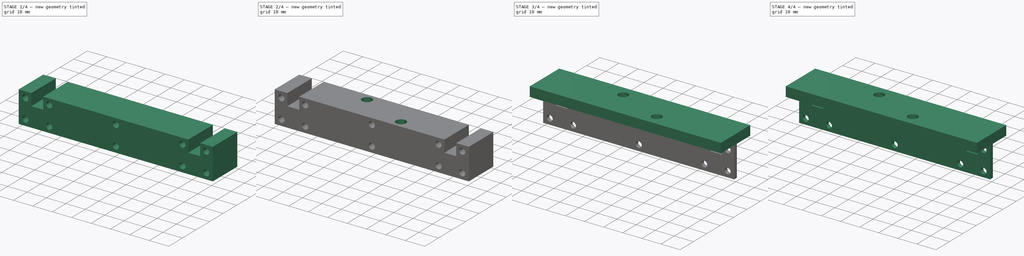
[diagram: build sequence overview — one tinted view per stage of 4, left to right]
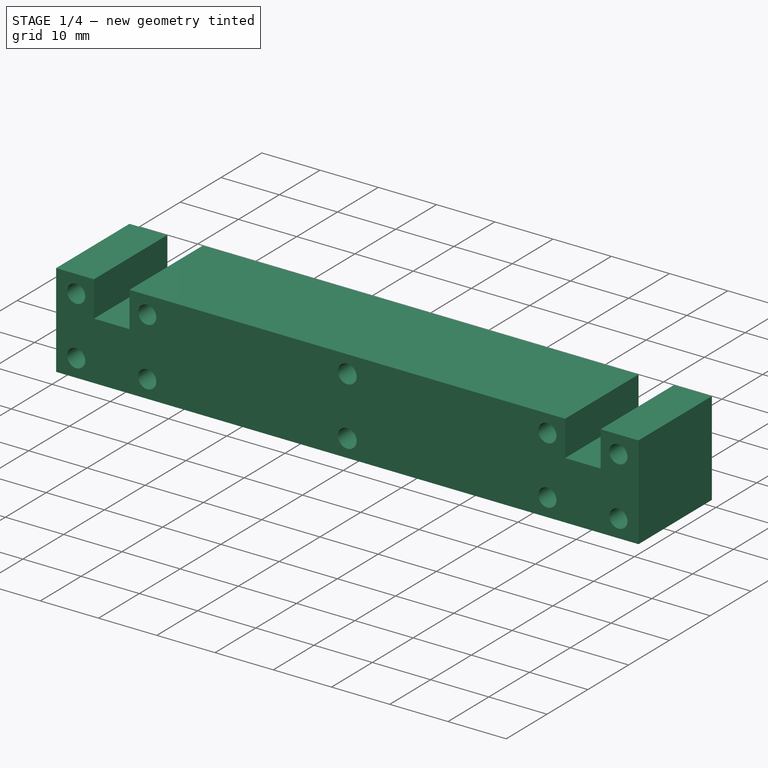
[diagram: stage 1 of 4 — iso view after this stage's code; geometry added in this stage tinted green]
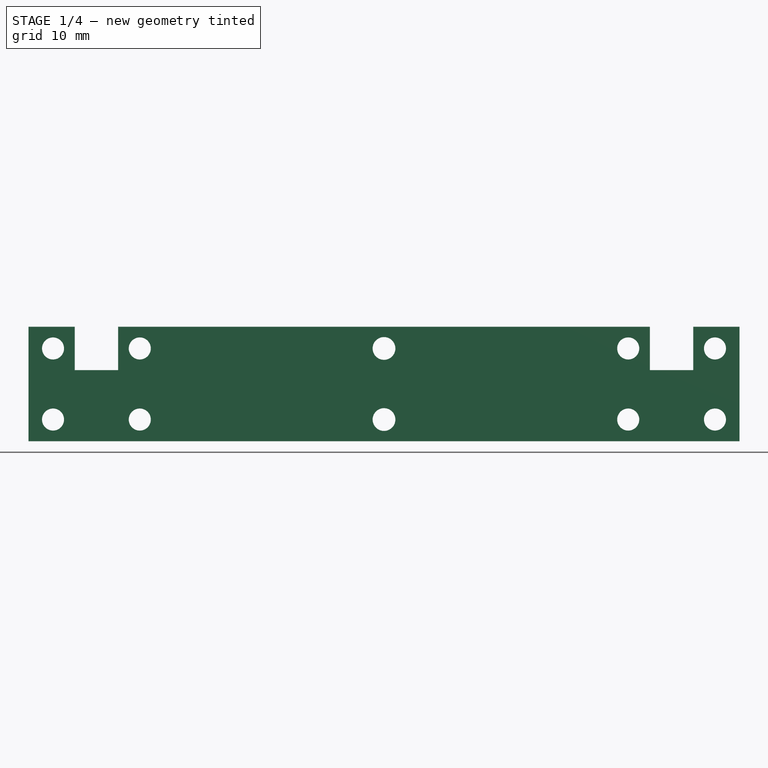
[diagram: stage 1 of 4 — front view after this stage's code; geometry added in this stage tinted green]
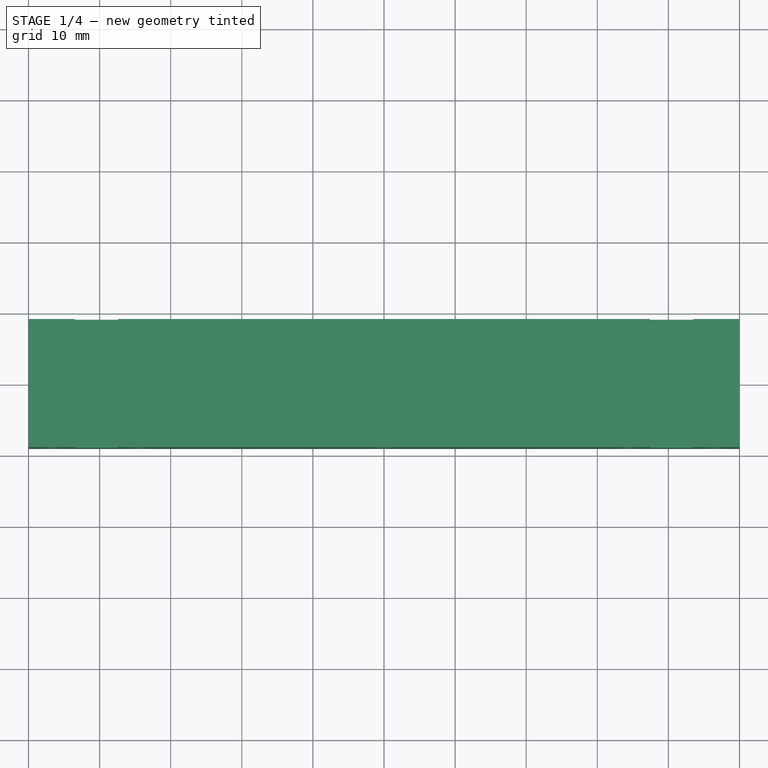
[diagram: stage 1 of 4 — top view after this stage's code; geometry added in this stage tinted green]
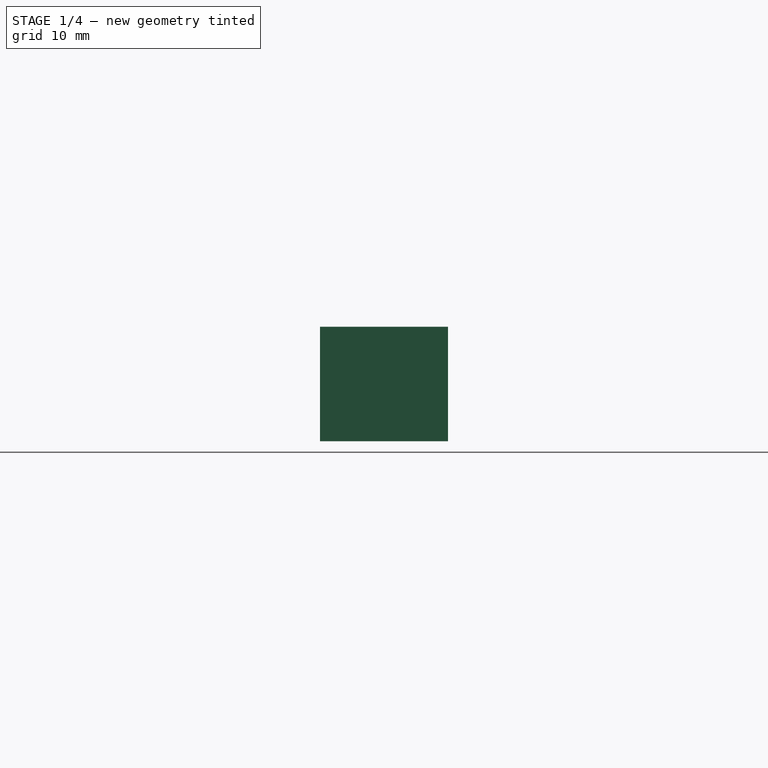
[diagram: stage 1 of 4 — right view after this stage's code; geometry added in this stage tinted green]
FCSTD DOCUMENT  (FreeCAD 0.19R24276 (Git))
Label: MLGMount
License: All rights reserved
LicenseURL: http://en.wikipedia.org/wiki/All_rights_reserved
objects: Sketcher::SketchObject×7, Part::Extrusion×7, App::Part×4, Part::Cut×2, Part::Part2DObjectPython×1
note: 17 computed .brp shape members not serialized (recipe doc carries the construction recipe); baked Part::Feature solids carry a one-line shape summary decoded from their .brp

FEATURE [Sketcher::SketchObject] Sketch
  FullyConstrained = true
  Placement = pos=(0,0,0) rot=(1,0,0;1.5708rad)
  sketch-geometry (22):
    g0: LineSegment StartX=-37.4 StartY=8.05 StartZ=0 EndX=37.4 EndY=8.05 EndZ=0
    g1: LineSegment StartX=43.5 StartY=8.05 StartZ=0 EndX=50 EndY=8.05 EndZ=0
    g2: LineSegment StartX=50 StartY=8.05 StartZ=0 EndX=50 EndY=-8.05 EndZ=0
    g3: LineSegment StartX=37.4 StartY=1.95 StartZ=0 EndX=43.5 EndY=1.95 EndZ=0
    g4: LineSegment StartX=-50 StartY=8.05 StartZ=0 EndX=-43.5 EndY=8.05 EndZ=0
    g5: LineSegment StartX=-50 StartY=-8.05 StartZ=0 EndX=-50 EndY=8.05 EndZ=0
    g6: LineSegment StartX=-37.4 StartY=1.95 StartZ=0 EndX=-43.5 EndY=1.95 EndZ=0
    g7: LineSegment StartX=-43.5 StartY=8.05 StartZ=0 EndX=-43.5 EndY=1.95 EndZ=0
    g8: LineSegment StartX=-37.4 StartY=1.95 StartZ=0 EndX=-37.4 EndY=8.05 EndZ=0
    g9: LineSegment StartX=37.4 StartY=8.05 StartZ=0 EndX=37.4 EndY=1.95 EndZ=0
    g10: LineSegment StartX=43.5 StartY=1.95 StartZ=0 EndX=43.5 EndY=8.05 EndZ=0
    g11: LineSegment StartX=-50 StartY=-8.05 StartZ=0 EndX=50 EndY=-8.05 EndZ=0
    g12: Circle CenterX=-46.55 CenterY=5 CenterZ=0 NormalX=0 NormalY=0 NormalZ=1 AngleXU=0 Radius=1.55
    g13: Circle CenterX=-46.55 CenterY=-5 CenterZ=0 NormalX=0 NormalY=0 NormalZ=1 AngleXU=0 Radius=1.55
    g14: Circle CenterX=46.55 CenterY=5 CenterZ=0 NormalX=0 NormalY=0 NormalZ=1 AngleXU=0 Radius=1.55
    g15: Circle CenterX=46.55 CenterY=-5 CenterZ=0 NormalX=0 NormalY=0 NormalZ=1 AngleXU=0 Radius=1.55
    g16: Circle CenterX=0 CenterY=5 CenterZ=0 NormalX=0 NormalY=0 NormalZ=1 AngleXU=0 Radius=1.6
    g17: Circle CenterX=0 CenterY=-5 CenterZ=0 NormalX=0 NormalY=0 NormalZ=1 AngleXU=0 Radius=1.6
    g18: Circle CenterX=-34.35 CenterY=5 CenterZ=0 NormalX=0 NormalY=0 NormalZ=1 AngleXU=0 Radius=1.55
    g19: Circle CenterX=-34.35 CenterY=-5 CenterZ=0 NormalX=0 NormalY=0 NormalZ=1 AngleXU=0 Radius=1.55
    g20: Circle CenterX=34.35 CenterY=5 CenterZ=0 NormalX=0 NormalY=0 NormalZ=1 AngleXU=0 Radius=1.55
    g21: Circle CenterX=34.35 CenterY=-5 CenterZ=0 NormalX=0 NormalY=0 NormalZ=1 AngleXU=0 Radius=1.55
  constraints (66):
    c: Horizontal(g0)
    c: Coincident(g1,g2)
    c: Horizontal(g1)
    c: Vertical(g2)
    c: Horizontal(g3)
    c: Coincident(g5,g4)
    c: Horizontal(g4)
    c: Vertical(g5)
    c: Horizontal(g6)
    c: Coincident(g7,g4)
    c: Coincident(g7,g6)
    c: Vertical(g7)
    c: Coincident(g8,g6)
    c: Coincident(g8,g0)
    c: Vertical(g8)
    c: Coincident(g9,g0)
    c: Coincident(g9,g3)
    c: Vertical(g9)
    c: Coincident(g10,g3)
    c: Coincident(g10,g1)
    c: Vertical(g10)
    c: Coincident(g11,g5)
    c: Coincident(g11,g2)
    c: Horizontal(g11)
    c: DistanceX(g4,g1) = 87
    c: DistanceX(g6,g6) = 6.1
    c: DistanceX(g0,g1) = 6.1
    c: DistanceY(g7,g7) = 6.1
    c: DistanceY(g8,g8) = 6.1
    c: DistanceY(g9,g9) = 6.1
    c: DistanceY(g10,g10) = 6.1
    c: DistanceY(g5,g5) = 16.1
    c: DistanceX(g11,g11) = 100
    c: DistanceX(g5,g-1) = 50
    c: DistanceY(g-1,g1) = 8.05
    c: DistanceX(g4,g-1) = 43.5
    c: Radius(g12) = 1.55
    c: DistanceY(g12,g4) = 3.05
    c: DistanceX(g12,g4) = 3.05
    c: Radius(g13) = 1.55
    c: DistanceX(g13,g6) = 3.05
    c: DistanceY(g5,g13) = 3.05
    c: Radius(g14) = 1.55
    c: Radius(g15) = 1.55
    c: DistanceY(g14,g1) = 3.05
    c: DistanceX(g1,g14) = 3.05
    c: DistanceY(g2,g15) = 3.05
    c: DistanceX(g3,g15) = 3.05
    c: DistanceY(g16,g0) = 3.05
    c: DistanceY(g5,g17) = 3.05
    c: Radius(g16) = 1.6
    c: Radius(g17) = 1.6
    c: DistanceX(g17,g-1) = 0
    c: DistanceX(g16,g-1) = 0
    c: Radius(g18) = 1.55
    c: Radius(g19) = 1.55
    c: Radius(g20) = 1.55
    c: Radius(g21) = 1.55
    c: DistanceX(g0,g18) = 3.05
    c: DistanceX(g6,g19) = 3.05
    c: DistanceY(g18,g0) = 3.05
    c: DistanceY(g5,g19) = 3.05
    c: DistanceY(g20,g0) = 3.05
    c: DistanceY(g2,g21) = 3.05
    c: DistanceX(g20,g0) = 3.05
    c: DistanceX(g21,g3) = 3.05
FEATURE [Part::Extrusion] Extrude
  Base = -> Sketch
  Dir = (0,-1,3e-16)
  DirMode = 2
  FaceMakerClass = Part::FaceMakerBullseye
  LengthFwd = 9
  LengthRev = 9
  Solid = true
  Symmetric = false
FEATURE [App::Part] Part002  label="GFPlate1"
  Group = -> [Sketch004,Extrude004]
  Origin = -> Origin002
  Placement = pos=(0,10.01,0) rot=(0,0,1;0rad)
FEATURE [Sketcher::SketchObject] Sketch005
  FullyConstrained = true
  Placement = pos=(0,0,0) rot=(1,0,0;1.5708rad)
  sketch-geometry (22):
    g0: LineSegment StartX=-37.4 StartY=8.05 StartZ=0 EndX=37.4 EndY=8.05 EndZ=0
    g1: LineSegment StartX=43.5 StartY=8.05 StartZ=0 EndX=50 EndY=8.05 EndZ=0
    g2: LineSegment StartX=50 StartY=8.05 StartZ=0 EndX=50 EndY=-8.05 EndZ=0
    g3: LineSegment StartX=37.4 StartY=1.95 StartZ=0 EndX=43.5 EndY=1.95 EndZ=0
    g4: LineSegment StartX=-50 StartY=8.05 StartZ=0 EndX=-43.5 EndY=8.05 EndZ=0
    g5: LineSegment StartX=-50 StartY=-8.05 StartZ=0 EndX=-50 EndY=8.05 EndZ=0
    g6: LineSegment StartX=-37.4 StartY=1.95 StartZ=0 EndX=-43.5 EndY=1.95 EndZ=0
    g7: LineSegment StartX=-43.5 StartY=8.05 StartZ=0 EndX=-43.5 EndY=1.95 EndZ=0
    g8: LineSegment StartX=-37.4 StartY=1.95 StartZ=0 EndX=-37.4 EndY=8.05 EndZ=0
    g9: LineSegment StartX=37.4 StartY=8.05 StartZ=0 EndX=37.4 EndY=1.95 EndZ=0
    g10: LineSegment StartX=43.5 StartY=1.95 StartZ=0 EndX=43.5 EndY=8.05 EndZ=0
    g11: LineSegment StartX=-50 StartY=-8.05 StartZ=0 EndX=50 EndY=-8.05 EndZ=0
    g12: Circle CenterX=-46.55 CenterY=5 CenterZ=0 NormalX=0 NormalY=0 NormalZ=1 AngleXU=0 Radius=1.55
    g13: Circle CenterX=-46.55 CenterY=-5 CenterZ=0 NormalX=0 NormalY=0 NormalZ=1 AngleXU=0 Radius=1.55
    g14: Circle CenterX=46.55 CenterY=5 CenterZ=0 NormalX=0 NormalY=0 NormalZ=1 AngleXU=0 Radius=1.55
    g15: Circle CenterX=46.55 CenterY=-5 CenterZ=0 NormalX=0 NormalY=0 NormalZ=1 AngleXU=0 Radius=1.55
    g16: Circle CenterX=0 CenterY=5 CenterZ=0 NormalX=0 NormalY=0 NormalZ=1 AngleXU=0 Radius=1.6
    g17: Circle CenterX=0 CenterY=-5 CenterZ=0 NormalX=0 NormalY=0 NormalZ=1 AngleXU=0 Radius=1.6
    g18: Circle CenterX=-34.35 CenterY=5 CenterZ=0 NormalX=0 NormalY=0 NormalZ=1 AngleXU=0 Radius=1.55
    g19: Circle CenterX=-34.35 CenterY=-5 CenterZ=0 NormalX=0 NormalY=0 NormalZ=1 AngleXU=0 Radius=1.55
    g20: Circle CenterX=34.35 CenterY=5 CenterZ=0 NormalX=0 NormalY=0 NormalZ=1 AngleXU=0 Radius=1.55
    g21: Circle CenterX=34.35 CenterY=-5 CenterZ=0 NormalX=0 NormalY=0 NormalZ=1 AngleXU=0 Radius=1.55
  constraints (66):
    c: Horizontal(g0)
    c: Coincident(g1,g2)
    c: Horizontal(g1)
    c: Vertical(g2)
    c: Horizontal(g3)
    c: Coincident(g5,g4)
    c: Horizontal(g4)
    c: Vertical(g5)
    c: Horizontal(g6)
    c: Coincident(g7,g4)
    c: Coincident(g7,g6)
    c: Vertical(g7)
    c: Coincident(g8,g6)
    c: Coincident(g8,g0)
    c: Vertical(g8)
    c: Coincident(g9,g0)
    c: Coincident(g9,g3)
    c: Vertical(g9)
    c: Coincident(g10,g3)
    c: Coincident(g10,g1)
    c: Vertical(g10)
    c: Coincident(g11,g5)
    c: Coincident(g11,g2)
    c: Horizontal(g11)
    c: DistanceX(g4,g1) = 87
    c: DistanceX(g6,g6) = 6.1
    c: DistanceX(g0,g1) = 6.1
    c: DistanceY(g7,g7) = 6.1
    c: DistanceY(g8,g8) = 6.1
    c: DistanceY(g9,g9) = 6.1
    c: DistanceY(g10,g10) = 6.1
    c: DistanceY(g5,g5) = 16.1
    c: DistanceX(g11,g11) = 100
    c: DistanceX(g5,g-1) = 50
    c: DistanceY(g-1,g1) = 8.05
    c: DistanceX(g4,g-1) = 43.5
    c: Radius(g12) = 1.55
    c: DistanceY(g12,g4) = 3.05
    c: DistanceX(g12,g4) = 3.05
    c: Radius(g13) = 1.55
    c: DistanceX(g13,g6) = 3.05
    c: DistanceY(g5,g13) = 3.05
    c: Radius(g14) = 1.55
    c: Radius(g15) = 1.55
    c: DistanceY(g14,g1) = 3.05
    c: DistanceX(g1,g14) = 3.05
    c: DistanceY(g2,g15) = 3.05
    c: DistanceX(g3,g15) = 3.05
    c: DistanceY(g16,g0) = 3.05
    c: DistanceY(g5,g17) = 3.05
    c: Radius(g16) = 1.6
    c: Radius(g17) = 1.6
    c: DistanceX(g17,g-1) = 0
    c: DistanceX(g16,g-1) = 0
    c: Radius(g18) = 1.55
    c: Radius(g19) = 1.55
    c: Radius(g20) = 1.55
    c: Radius(g21) = 1.55
    c: DistanceX(g0,g18) = 3.05
    c: DistanceX(g6,g19) = 3.05
    c: DistanceY(g18,g0) = 3.05
    c: DistanceY(g5,g19) = 3.05
    c: DistanceY(g20,g0) = 3.05
    c: DistanceY(g2,g21) = 3.05
    c: DistanceX(g20,g0) = 3.05
    c: DistanceX(g21,g3) = 3.05
FEATURE [Part::Extrusion] Extrude005
  Base = -> Sketch005
  Dir = (0,-1,2e-16)
  DirMode = 2
  FaceMakerClass = Part::FaceMakerBullseye
  LengthFwd = 1
  LengthRev = 1
  Solid = true
  Symmetric = false
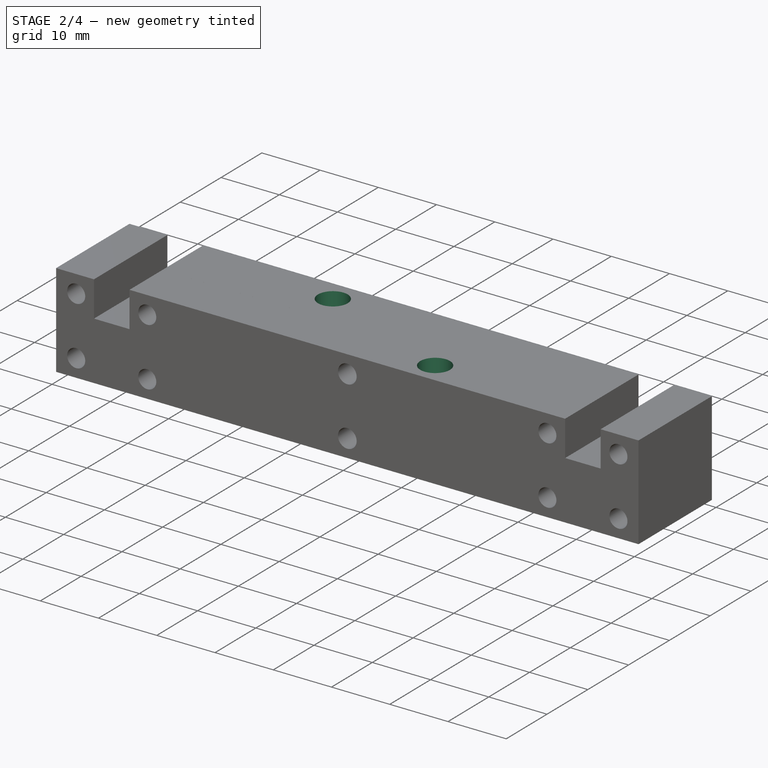
[diagram: stage 2 of 4 — iso view after this stage's code; geometry added in this stage tinted green]
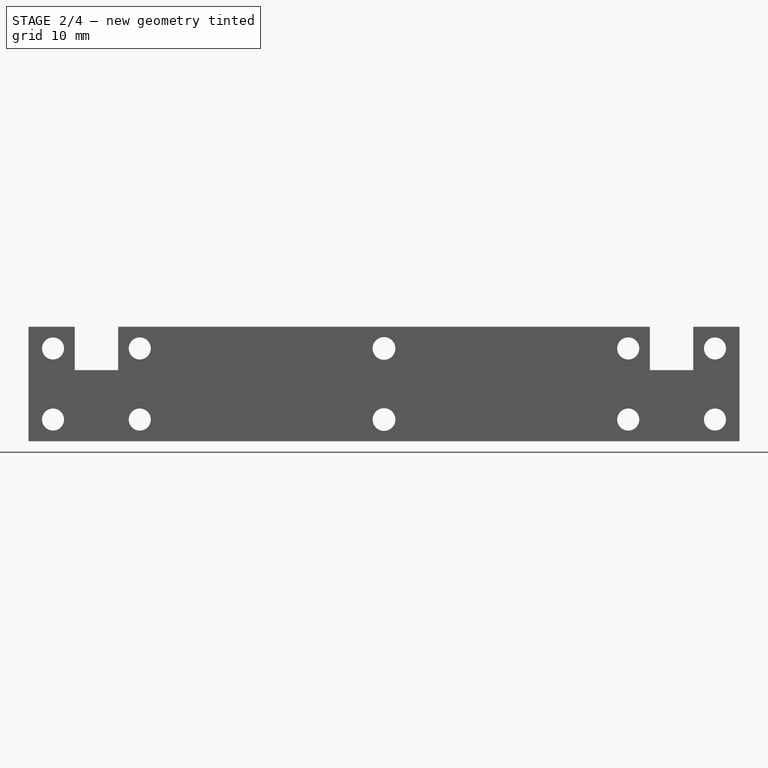
[diagram: stage 2 of 4 — front view after this stage's code; geometry added in this stage tinted green]
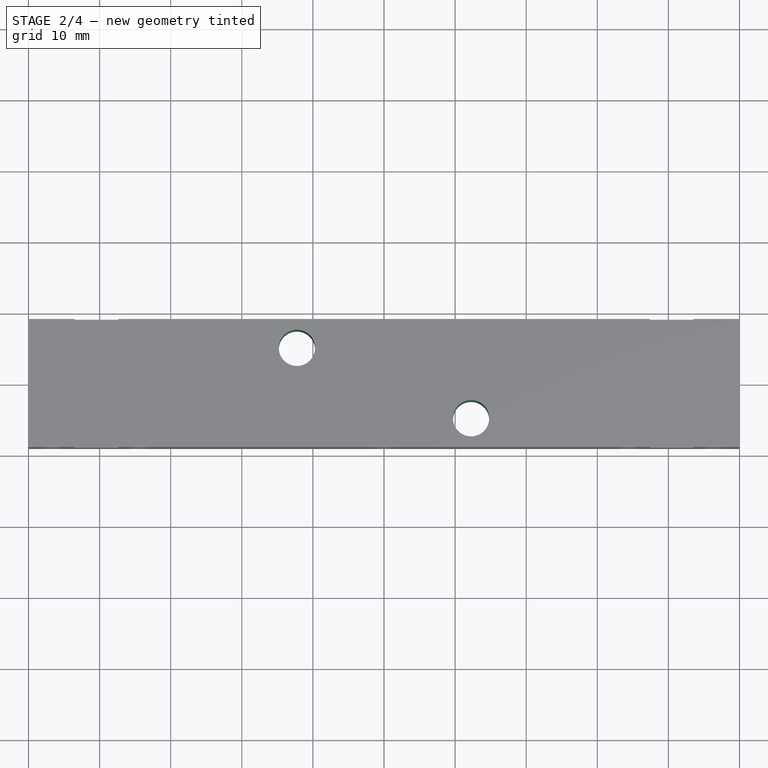
[diagram: stage 2 of 4 — top view after this stage's code; geometry added in this stage tinted green]
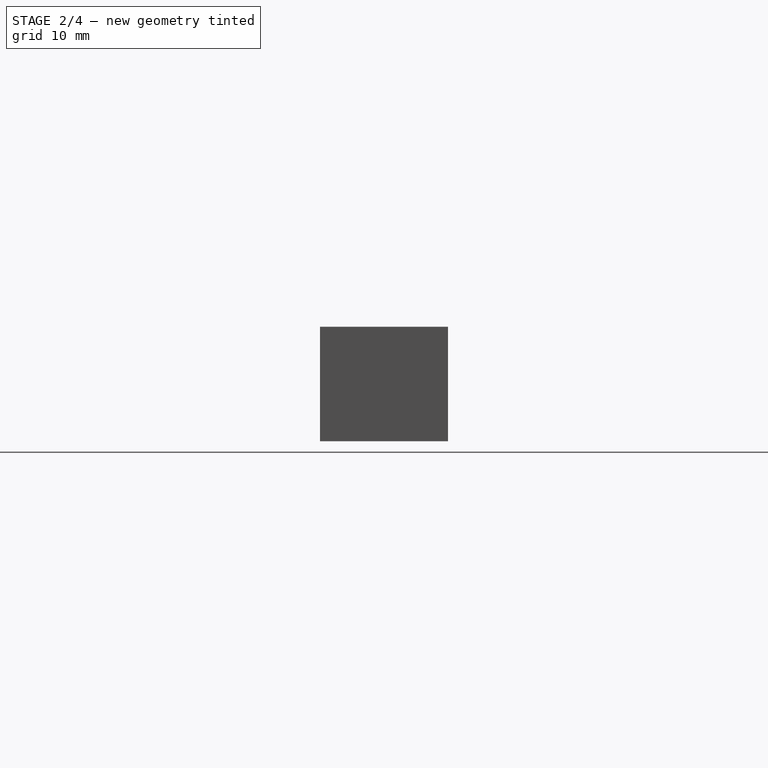
[diagram: stage 2 of 4 — right view after this stage's code; geometry added in this stage tinted green]
FEATURE [Sketcher::SketchObject] Sketch001
  FullyConstrained = true
  MapMode = 5
  Placement = pos=(0,2.7e-15,8.05) rot=(0,0,1;0rad)
  Support = -> [Extrude]
  sketch-geometry (2):
    g0: Circle CenterX=-12.25 CenterY=4.95 CenterZ=0 NormalX=0 NormalY=0 NormalZ=1 AngleXU=0 Radius=2.55
    g1: Circle CenterX=12.25 CenterY=-4.95 CenterZ=0 NormalX=0 NormalY=0 NormalZ=1 AngleXU=0 Radius=2.55
  constraints (6):
    c: Radius(g0) = 2.55
    c: Radius(g1) = 2.55
    c: DistanceY(g1,g0) = 9.9
    c: DistanceX(g0,g1) = 24.5
    c: DistanceX(g0,g-1) = 12.25
    c: DistanceY(g-1,g0) = 4.95
FEATURE [Part::Extrusion] Extrude001
  Base = -> Sketch001
  Dir = (0,3e-16,1)
  DirMode = 2
  FaceMakerClass = Part::FaceMakerBullseye
  LengthFwd = 0.01
  LengthRev = 50.01
  Solid = true
  Symmetric = false
FEATURE [Part::Cut] Cut
  Base = -> Extrude
  Tool = -> Extrude001
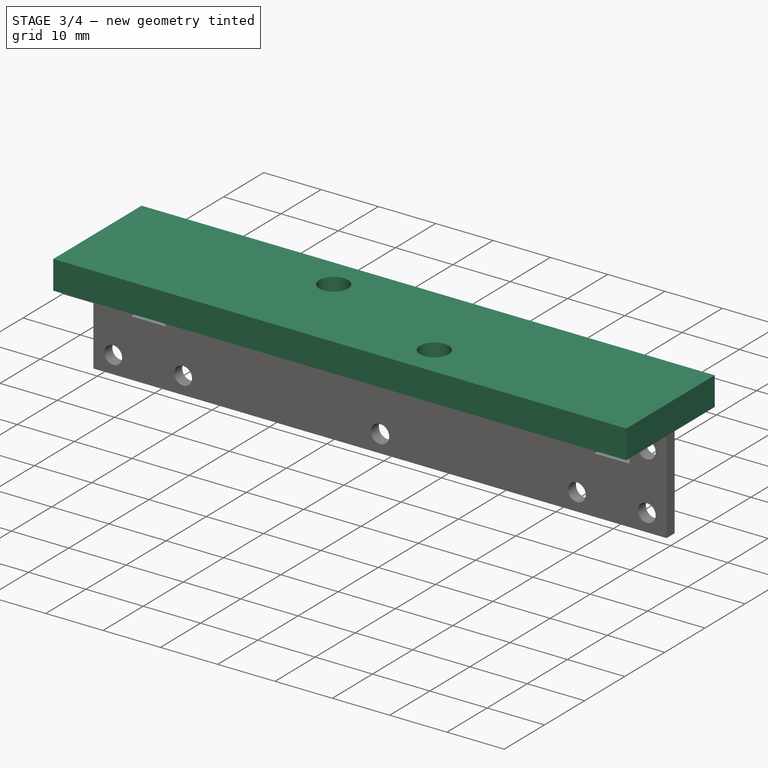
[diagram: stage 3 of 4 — iso view after this stage's code; geometry added in this stage tinted green]
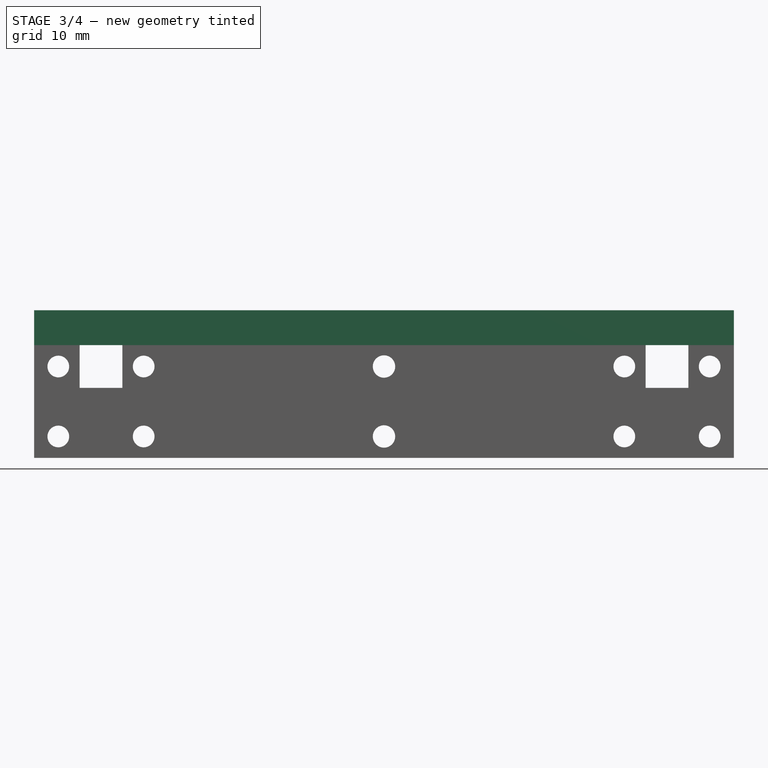
[diagram: stage 3 of 4 — front view after this stage's code; geometry added in this stage tinted green]
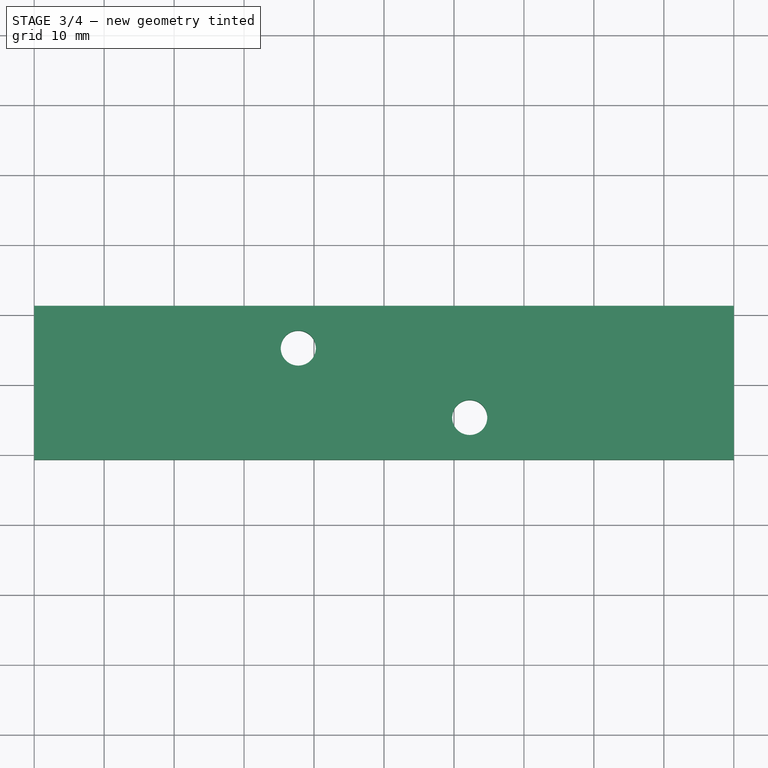
[diagram: stage 3 of 4 — top view after this stage's code; geometry added in this stage tinted green]
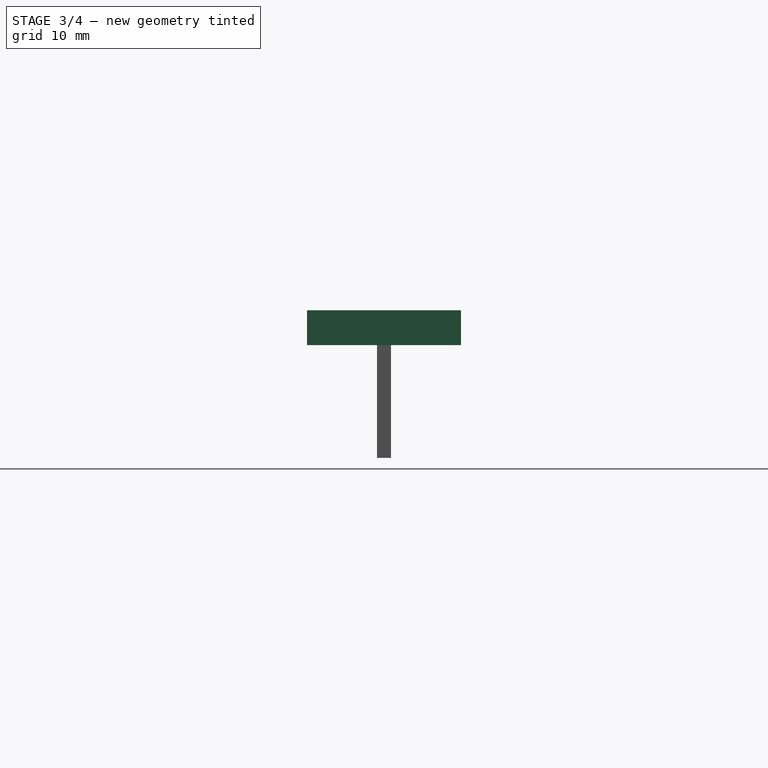
[diagram: stage 3 of 4 — right view after this stage's code; geometry added in this stage tinted green]
FEATURE [Sketcher::SketchObject] Sketch002
  FullyConstrained = true
  MapMode = 5
  Placement = pos=(0,2.7e-15,8.05) rot=(0,0,1;0rad)
  Support = -> [Cut]
  sketch-geometry (4):
    g0: LineSegment StartX=-50 StartY=1 StartZ=0 EndX=50 EndY=1 EndZ=0
    g1: LineSegment StartX=50 StartY=1 StartZ=0 EndX=50 EndY=-1 EndZ=0
    g2: LineSegment StartX=50 StartY=-1 StartZ=0 EndX=-50 EndY=-1 EndZ=0
    g3: LineSegment StartX=-50 StartY=-1 StartZ=0 EndX=-50 EndY=1 EndZ=0
  constraints (12):
    c: Coincident(g0,g1)
    c: Coincident(g1,g2)
    c: Coincident(g2,g3)
    c: Coincident(g3,g0)
    c: Horizontal(g0)
    c: Horizontal(g2)
    c: Vertical(g1)
    c: Vertical(g3)
    c: DistanceX(g0,g-1) = 50
    c: DistanceX(g2,g2) = 100
    c: DistanceY(g3,g3) = 2
    c: DistanceY(g-1,g0) = 1
FEATURE [Part::Extrusion] Extrude002
  Base = -> Sketch002
  Dir = (0,3e-16,1)
  DirMode = 2
  FaceMakerClass = Part::FaceMakerBullseye
  LengthFwd = 10
  LengthRev = 50
  Solid = true
  Symmetric = false
FEATURE [Part::Cut] Cut001
  Base = -> Cut
  Tool = -> Extrude002
FEATURE [App::Part] Part003  label="GFPlate2"
  Group = -> [Sketch005,Extrude005]
  Origin = -> Origin003
  Placement = pos=(0,-10.01,0) rot=(0,0,1;0rad)
FEATURE [Sketcher::SketchObject] Sketch006
  FullyConstrained = true
  MapMode = 5
  Placement = pos=(0,2.7e-15,8.05) rot=(0,0,1;0rad)
  Support = -> [Cut001]
  sketch-geometry (6):
    g0: LineSegment StartX=-50 StartY=11 StartZ=0 EndX=50 EndY=11 EndZ=0
    g1: LineSegment StartX=50 StartY=11 StartZ=0 EndX=50 EndY=-11 EndZ=0
    g2: LineSegment StartX=50 StartY=-11 StartZ=0 EndX=-50 EndY=-11 EndZ=0
    g3: LineSegment StartX=-50 StartY=-11 StartZ=0 EndX=-50 EndY=11 EndZ=0
    g4: Circle CenterX=-12.25 CenterY=4.96 CenterZ=0 NormalX=0 NormalY=0 NormalZ=1 AngleXU=0 Radius=2.51
    g5: Circle CenterX=12.25 CenterY=-4.96 CenterZ=0 NormalX=0 NormalY=0 NormalZ=1 AngleXU=0 Radius=2.51
  constraints (18):
    c: Coincident(g0,g1)
    c: Coincident(g1,g2)
    c: Coincident(g2,g3)
    c: Coincident(g3,g0)
    c: Horizontal(g0)
    c: Horizontal(g2)
    c: Vertical(g1)
    c: Vertical(g3)
    c: DistanceX(g0,g-1) = 50
    c: DistanceX(g0,g0) = 100
    c: DistanceY(g3,g3) = 22
    c: DistanceY(g-1,g0) = 11
    c: Radius(g4) = 2.51
    c: DistanceX(g4,g-1) = 12.25
    c: DistanceY(g-1,g4) = 4.96
    c: Radius(g5) = 2.51
    c: DistanceY(g5,g-1) = 4.96
    c: DistanceX(g-1,g5) = 12.25
FEATURE [Part::Extrusion] Extrude006
  Base = -> Sketch006
  Dir = (0,3e-16,1)
  DirMode = 2
  FaceMakerClass = Part::FaceMakerBullseye
  LengthFwd = 5
  LengthRev = 0
  Solid = true
  Symmetric = false
FEATURE [App::Part] Part004  label="Bridge"
  Group = -> [Extrude,Extrude001,Sketch006,Extrude002,Cut,Sketch001,Sketch,Sketch002,Cut001,Extrude006]
  Origin = -> Origin004
FEATURE [Part::Part2DObjectPython] Shape2DView  # Draft 2D object (typed FeaturePython)
  Base = -> Extrude005
  FaceNumbers = [23]
  FuseArch = false
  HiddenLines = false
  InPlace = true
  Projection = (0,-1,0)
  ProjectionMode = 0
  SegmentLength = 0.05
  Tessellation = false
  VisibleOnly = false
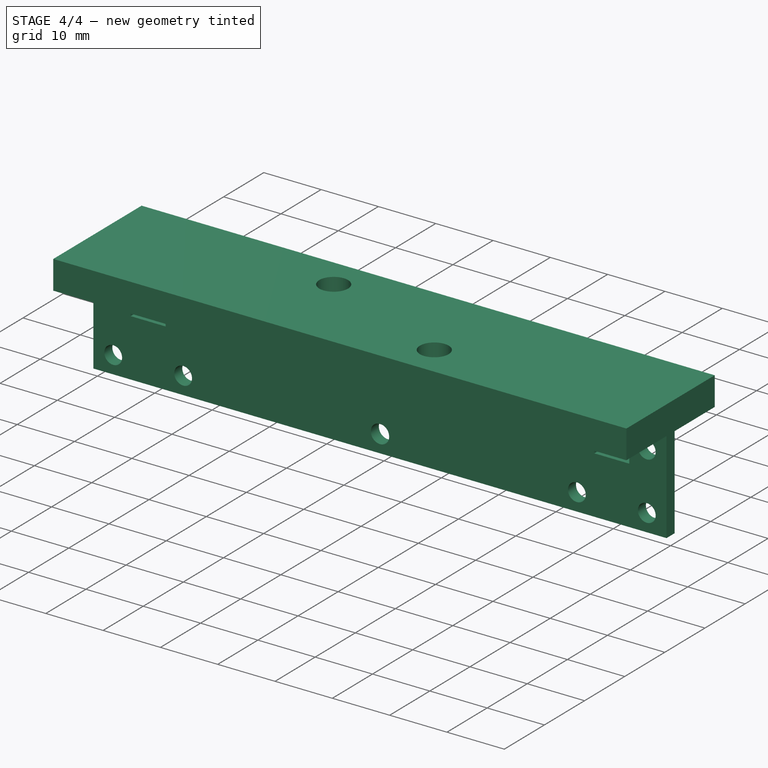
[diagram: stage 4 of 4 — iso view after this stage's code; geometry added in this stage tinted green]
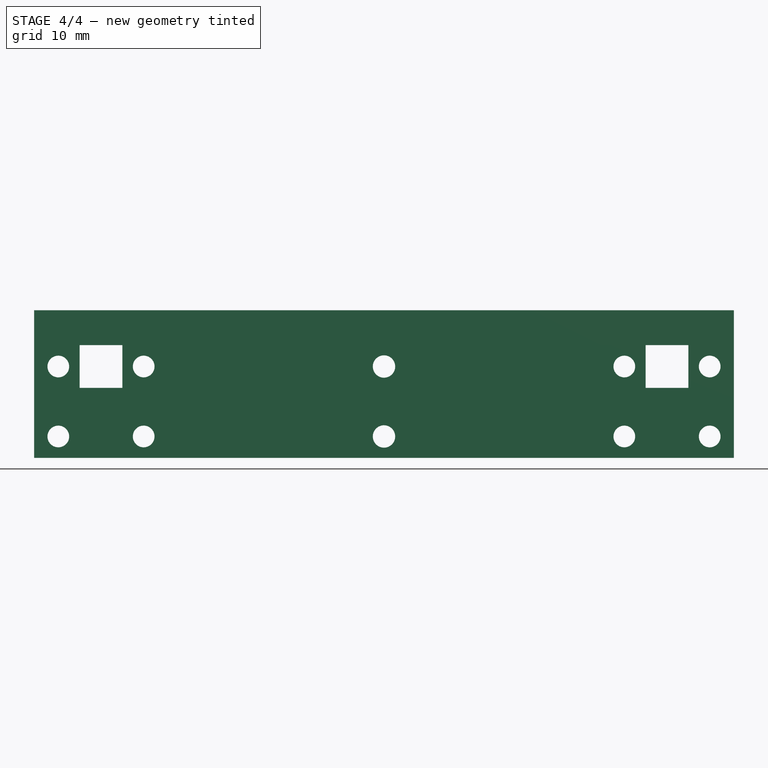
[diagram: stage 4 of 4 — front view after this stage's code; geometry added in this stage tinted green]
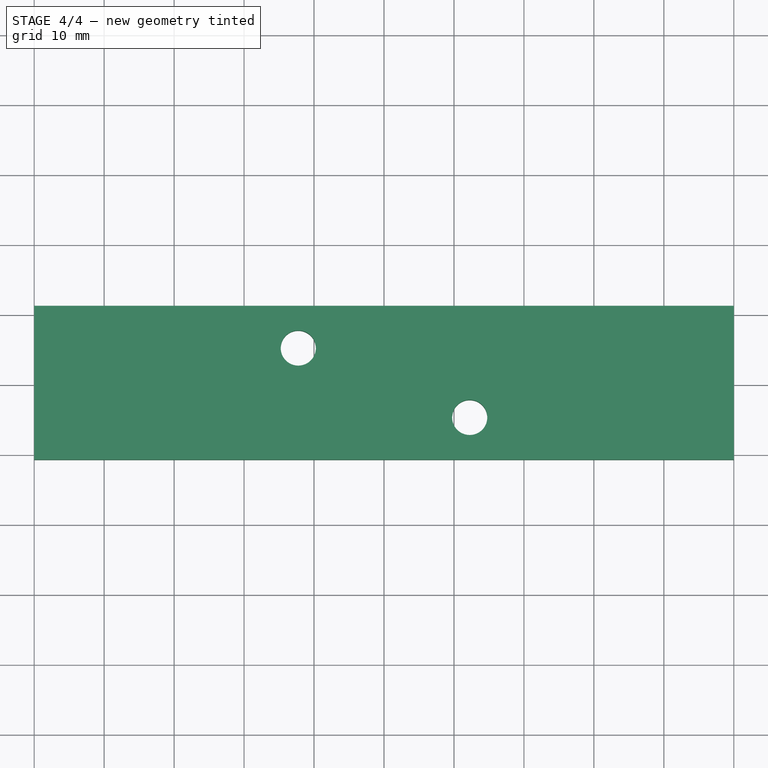
[diagram: stage 4 of 4 — top view after this stage's code; geometry added in this stage tinted green]
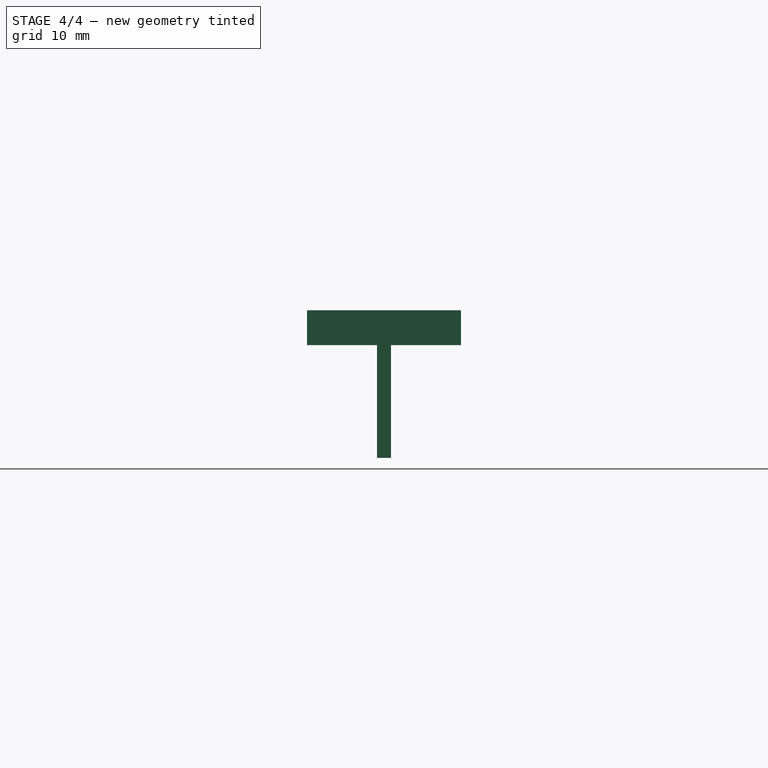
[diagram: stage 4 of 4 — right view after this stage's code; geometry added in this stage tinted green]
FEATURE [Sketcher::SketchObject] Sketch003
  FullyConstrained = true
  Placement = pos=(0,0,0) rot=(1,0,0;1.5708rad)
  sketch-geometry (22):
    g0: LineSegment StartX=-37.4 StartY=8.05 StartZ=0 EndX=37.4 EndY=8.05 EndZ=0
    g1: LineSegment StartX=43.5 StartY=8.05 StartZ=0 EndX=50 EndY=8.05 EndZ=0
    g2: LineSegment StartX=50 StartY=8.05 StartZ=0 EndX=50 EndY=-8.05 EndZ=0
    g3: LineSegment StartX=37.4 StartY=1.95 StartZ=0 EndX=43.5 EndY=1.95 EndZ=0
    g4: LineSegment StartX=-50 StartY=8.05 StartZ=0 EndX=-43.5 EndY=8.05 EndZ=0
    g5: LineSegment StartX=-50 StartY=-8.05 StartZ=0 EndX=-50 EndY=8.05 EndZ=0
    g6: LineSegment StartX=-37.4 StartY=1.95 StartZ=0 EndX=-43.5 EndY=1.95 EndZ=0
    g7: LineSegment StartX=-43.5 StartY=8.05 StartZ=0 EndX=-43.5 EndY=1.95 EndZ=0
    g8: LineSegment StartX=-37.4 StartY=1.95 StartZ=0 EndX=-37.4 EndY=8.05 EndZ=0
    g9: LineSegment StartX=37.4 StartY=8.05 StartZ=0 EndX=37.4 EndY=1.95 EndZ=0
    g10: LineSegment StartX=43.5 StartY=1.95 StartZ=0 EndX=43.5 EndY=8.05 EndZ=0
    g11: LineSegment StartX=-50 StartY=-8.05 StartZ=0 EndX=50 EndY=-8.05 EndZ=0
    g12: Circle CenterX=-46.55 CenterY=5 CenterZ=0 NormalX=0 NormalY=0 NormalZ=1 AngleXU=0 Radius=1.55
    g13: Circle CenterX=-46.55 CenterY=-5 CenterZ=0 NormalX=0 NormalY=0 NormalZ=1 AngleXU=0 Radius=1.55
    g14: Circle CenterX=46.55 CenterY=5 CenterZ=0 NormalX=0 NormalY=0 NormalZ=1 AngleXU=0 Radius=1.55
    g15: Circle CenterX=46.55 CenterY=-5 CenterZ=0 NormalX=0 NormalY=0 NormalZ=1 AngleXU=0 Radius=1.55
    g16: Circle CenterX=0 CenterY=5 CenterZ=0 NormalX=0 NormalY=0 NormalZ=1 AngleXU=0 Radius=1.6
    g17: Circle CenterX=0 CenterY=-5 CenterZ=0 NormalX=0 NormalY=0 NormalZ=1 AngleXU=0 Radius=1.6
    g18: Circle CenterX=-34.35 CenterY=5 CenterZ=0 NormalX=0 NormalY=0 NormalZ=1 AngleXU=0 Radius=1.55
    g19: Circle CenterX=-34.35 CenterY=-5 CenterZ=0 NormalX=0 NormalY=0 NormalZ=1 AngleXU=0 Radius=1.55
    g20: Circle CenterX=34.35 CenterY=5 CenterZ=0 NormalX=0 NormalY=0 NormalZ=1 AngleXU=0 Radius=1.55
    g21: Circle CenterX=34.35 CenterY=-5 CenterZ=0 NormalX=0 NormalY=0 NormalZ=1 AngleXU=0 Radius=1.55
  constraints (66):
    c: Horizontal(g0)
    c: Coincident(g1,g2)
    c: Horizontal(g1)
    c: Vertical(g2)
    c: Horizontal(g3)
    c: Coincident(g5,g4)
    c: Horizontal(g4)
    c: Vertical(g5)
    c: Horizontal(g6)
    c: Coincident(g7,g4)
    c: Coincident(g7,g6)
    c: Vertical(g7)
    c: Coincident(g8,g6)
    c: Coincident(g8,g0)
    c: Vertical(g8)
    c: Coincident(g9,g0)
    c: Coincident(g9,g3)
    c: Vertical(g9)
    c: Coincident(g10,g3)
    c: Coincident(g10,g1)
    c: Vertical(g10)
    c: Coincident(g11,g5)
    c: Coincident(g11,g2)
    c: Horizontal(g11)
    c: DistanceX(g4,g1) = 87
    c: DistanceX(g6,g6) = 6.1
    c: DistanceX(g0,g1) = 6.1
    c: DistanceY(g7,g7) = 6.1
    c: DistanceY(g8,g8) = 6.1
    c: DistanceY(g9,g9) = 6.1
    c: DistanceY(g10,g10) = 6.1
    c: DistanceY(g5,g5) = 16.1
    c: DistanceX(g11,g11) = 100
    c: DistanceX(g5,g-1) = 50
    c: DistanceY(g-1,g1) = 8.05
    c: DistanceX(g4,g-1) = 43.5
    c: Radius(g12) = 1.55
    c: DistanceY(g12,g4) = 3.05
    c: DistanceX(g12,g4) = 3.05
    c: Radius(g13) = 1.55
    c: DistanceX(g13,g6) = 3.05
    c: DistanceY(g5,g13) = 3.05
    c: Radius(g14) = 1.55
    c: Radius(g15) = 1.55
    c: DistanceY(g14,g1) = 3.05
    c: DistanceX(g1,g14) = 3.05
    c: DistanceY(g2,g15) = 3.05
    c: DistanceX(g3,g15) = 3.05
    c: DistanceY(g16,g0) = 3.05
    c: DistanceY(g5,g17) = 3.05
    c: Radius(g16) = 1.6
    c: Radius(g17) = 1.6
    c: DistanceX(g17,g-1) = 0
    c: DistanceX(g16,g-1) = 0
    c: Radius(g18) = 1.55
    c: Radius(g19) = 1.55
    c: Radius(g20) = 1.55
    c: Radius(g21) = 1.55
    c: DistanceX(g0,g18) = 3.05
    c: DistanceX(g6,g19) = 3.05
    c: DistanceY(g18,g0) = 3.05
    c: DistanceY(g5,g19) = 3.05
    c: DistanceY(g20,g0) = 3.05
    c: DistanceY(g2,g21) = 3.05
    c: DistanceX(g20,g0) = 3.05
    c: DistanceX(g21,g3) = 3.05
FEATURE [Part::Extrusion] Extrude003
  Base = -> Sketch003
  Dir = (0,-1,2e-16)
  DirMode = 2
  FaceMakerClass = Part::FaceMakerBullseye
  LengthFwd = 1
  LengthRev = 1
  Solid = true
  Symmetric = false
FEATURE [App::Part] Part001  label="GFPlate0"
  Group = -> [Sketch003,Extrude003]
  Origin = -> Origin001
FEATURE [Sketcher::SketchObject] Sketch004
  FullyConstrained = true
  Placement = pos=(0,0,0) rot=(1,0,0;1.5708rad)
  sketch-geometry (22):
    g0: LineSegment StartX=-37.4 StartY=8.05 StartZ=0 EndX=37.4 EndY=8.05 EndZ=0
    g1: LineSegment StartX=43.5 StartY=8.05 StartZ=0 EndX=50 EndY=8.05 EndZ=0
    g2: LineSegment StartX=50 StartY=8.05 StartZ=0 EndX=50 EndY=-8.05 EndZ=0
    g3: LineSegment StartX=37.4 StartY=1.95 StartZ=0 EndX=43.5 EndY=1.95 EndZ=0
    g4: LineSegment StartX=-50 StartY=8.05 StartZ=0 EndX=-43.5 EndY=8.05 EndZ=0
    g5: LineSegment StartX=-50 StartY=-8.05 StartZ=0 EndX=-50 EndY=8.05 EndZ=0
    g6: LineSegment StartX=-37.4 StartY=1.95 StartZ=0 EndX=-43.5 EndY=1.95 EndZ=0
    g7: LineSegment StartX=-43.5 StartY=8.05 StartZ=0 EndX=-43.5 EndY=1.95 EndZ=0
    g8: LineSegment StartX=-37.4 StartY=1.95 StartZ=0 EndX=-37.4 EndY=8.05 EndZ=0
    g9: LineSegment StartX=37.4 StartY=8.05 StartZ=0 EndX=37.4 EndY=1.95 EndZ=0
    g10: LineSegment StartX=43.5 StartY=1.95 StartZ=0 EndX=43.5 EndY=8.05 EndZ=0
    g11: LineSegment StartX=-50 StartY=-8.05 StartZ=0 EndX=50 EndY=-8.05 EndZ=0
    g12: Circle CenterX=-46.55 CenterY=5 CenterZ=0 NormalX=0 NormalY=0 NormalZ=1 AngleXU=0 Radius=1.55
    g13: Circle CenterX=-46.55 CenterY=-5 CenterZ=0 NormalX=0 NormalY=0 NormalZ=1 AngleXU=0 Radius=1.55
    g14: Circle CenterX=46.55 CenterY=5 CenterZ=0 NormalX=0 NormalY=0 NormalZ=1 AngleXU=0 Radius=1.55
    g15: Circle CenterX=46.55 CenterY=-5 CenterZ=0 NormalX=0 NormalY=0 NormalZ=1 AngleXU=0 Radius=1.55
    g16: Circle CenterX=0 CenterY=5 CenterZ=0 NormalX=0 NormalY=0 NormalZ=1 AngleXU=0 Radius=1.6
    g17: Circle CenterX=0 CenterY=-5 CenterZ=0 NormalX=0 NormalY=0 NormalZ=1 AngleXU=0 Radius=1.6
    g18: Circle CenterX=-34.35 CenterY=5 CenterZ=0 NormalX=0 NormalY=0 NormalZ=1 AngleXU=0 Radius=1.55
    g19: Circle CenterX=-34.35 CenterY=-5 CenterZ=0 NormalX=0 NormalY=0 NormalZ=1 AngleXU=0 Radius=1.55
    g20: Circle CenterX=34.35 CenterY=5 CenterZ=0 NormalX=0 NormalY=0 NormalZ=1 AngleXU=0 Radius=1.55
    g21: Circle CenterX=34.35 CenterY=-5 CenterZ=0 NormalX=0 NormalY=0 NormalZ=1 AngleXU=0 Radius=1.55
  constraints (66):
    c: Horizontal(g0)
    c: Coincident(g1,g2)
    c: Horizontal(g1)
    c: Vertical(g2)
    c: Horizontal(g3)
    c: Coincident(g5,g4)
    c: Horizontal(g4)
    c: Vertical(g5)
    c: Horizontal(g6)
    c: Coincident(g7,g4)
    c: Coincident(g7,g6)
    c: Vertical(g7)
    c: Coincident(g8,g6)
    c: Coincident(g8,g0)
    c: Vertical(g8)
    c: Coincident(g9,g0)
    c: Coincident(g9,g3)
    c: Vertical(g9)
    c: Coincident(g10,g3)
    c: Coincident(g10,g1)
    c: Vertical(g10)
    c: Coincident(g11,g5)
    c: Coincident(g11,g2)
    c: Horizontal(g11)
    c: DistanceX(g4,g1) = 87
    c: DistanceX(g6,g6) = 6.1
    c: DistanceX(g0,g1) = 6.1
    c: DistanceY(g7,g7) = 6.1
    c: DistanceY(g8,g8) = 6.1
    c: DistanceY(g9,g9) = 6.1
    c: DistanceY(g10,g10) = 6.1
    c: DistanceY(g5,g5) = 16.1
    c: DistanceX(g11,g11) = 100
    c: DistanceX(g5,g-1) = 50
    c: DistanceY(g-1,g1) = 8.05
    c: DistanceX(g4,g-1) = 43.5
    c: Radius(g12) = 1.55
    c: DistanceY(g12,g4) = 3.05
    c: DistanceX(g12,g4) = 3.05
    c: Radius(g13) = 1.55
    c: DistanceX(g13,g6) = 3.05
    c: DistanceY(g5,g13) = 3.05
    c: Radius(g14) = 1.55
    c: Radius(g15) = 1.55
    c: DistanceY(g14,g1) = 3.05
    c: DistanceX(g1,g14) = 3.05
    c: DistanceY(g2,g15) = 3.05
    c: DistanceX(g3,g15) = 3.05
    c: DistanceY(g16,g0) = 3.05
    c: DistanceY(g5,g17) = 3.05
    c: Radius(g16) = 1.6
    c: Radius(g17) = 1.6
    c: DistanceX(g17,g-1) = 0
    c: DistanceX(g16,g-1) = 0
    c: Radius(g18) = 1.55
    c: Radius(g19) = 1.55
    c: Radius(g20) = 1.55
    c: Radius(g21) = 1.55
    c: DistanceX(g0,g18) = 3.05
    c: DistanceX(g6,g19) = 3.05
    c: DistanceY(g18,g0) = 3.05
    c: DistanceY(g5,g19) = 3.05
    c: DistanceY(g20,g0) = 3.05
    c: DistanceY(g2,g21) = 3.05
    c: DistanceX(g20,g0) = 3.05
    c: DistanceX(g21,g3) = 3.05
FEATURE [Part::Extrusion] Extrude004
  Base = -> Sketch004
  Dir = (0,-1,2e-16)
  DirMode = 2
  FaceMakerClass = Part::FaceMakerBullseye
  LengthFwd = 1
  LengthRev = 1
  Solid = true
  Symmetric = false
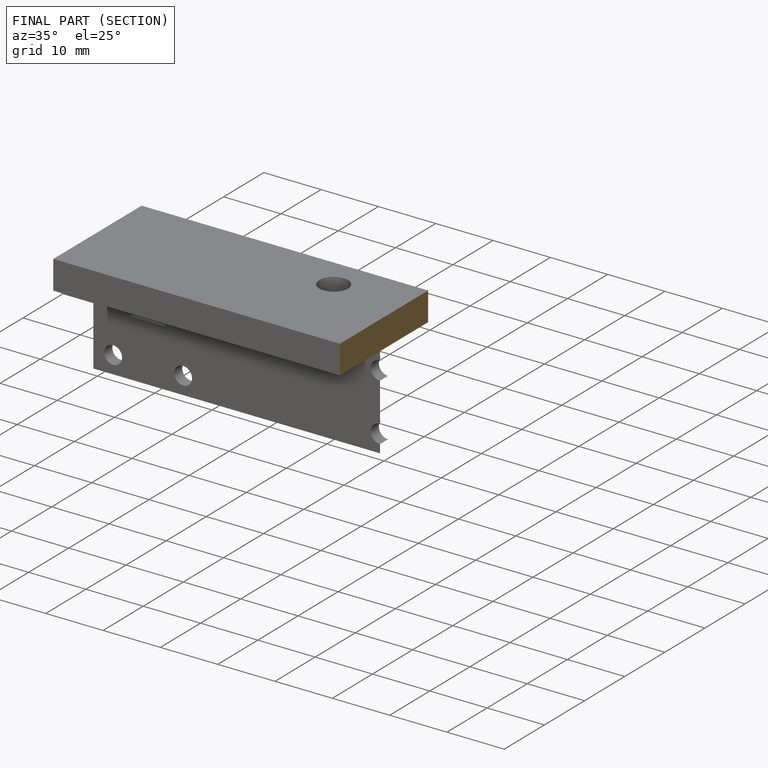
[diagram: finished part — half-section view (interior)]
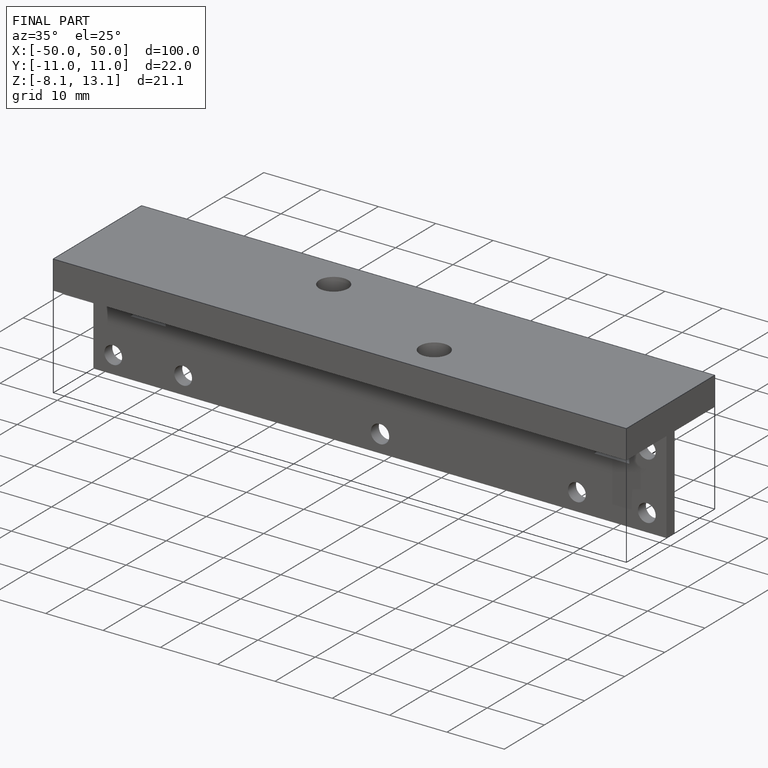
[diagram: finished part — iso view with bounding-box wireframe]
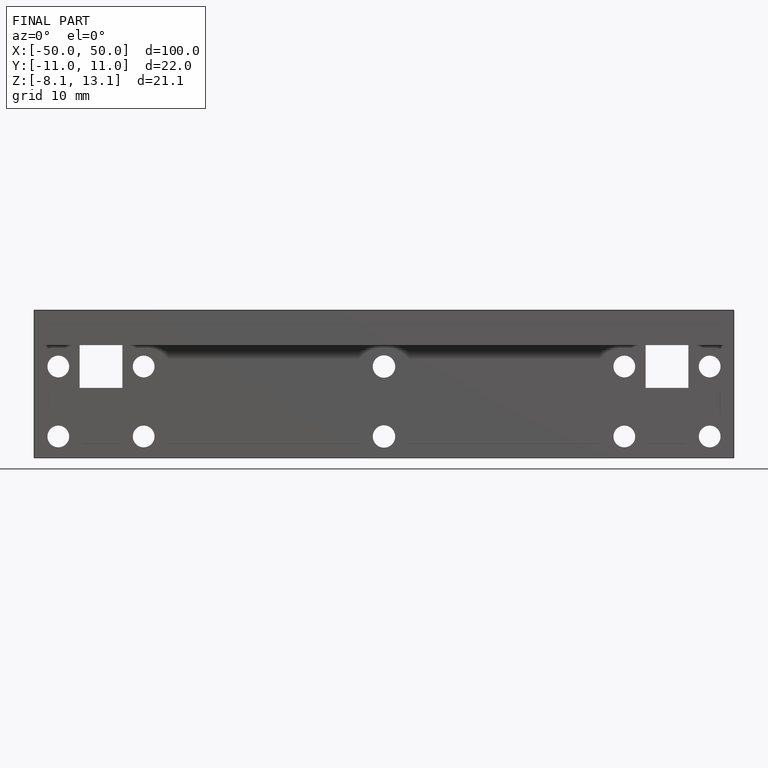
[diagram: finished part — front view with bounding-box wireframe]
